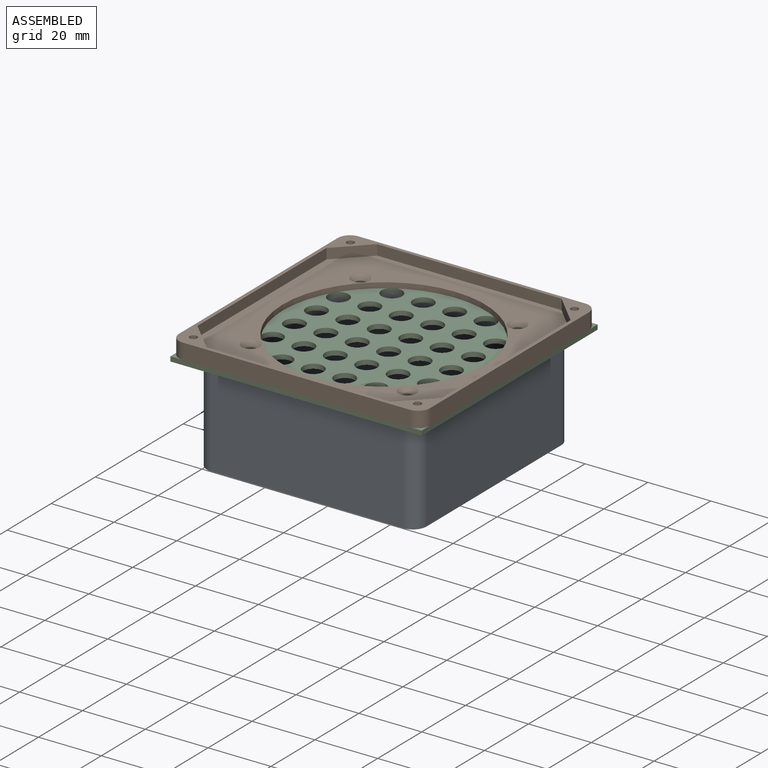
[diagram: assembled view]
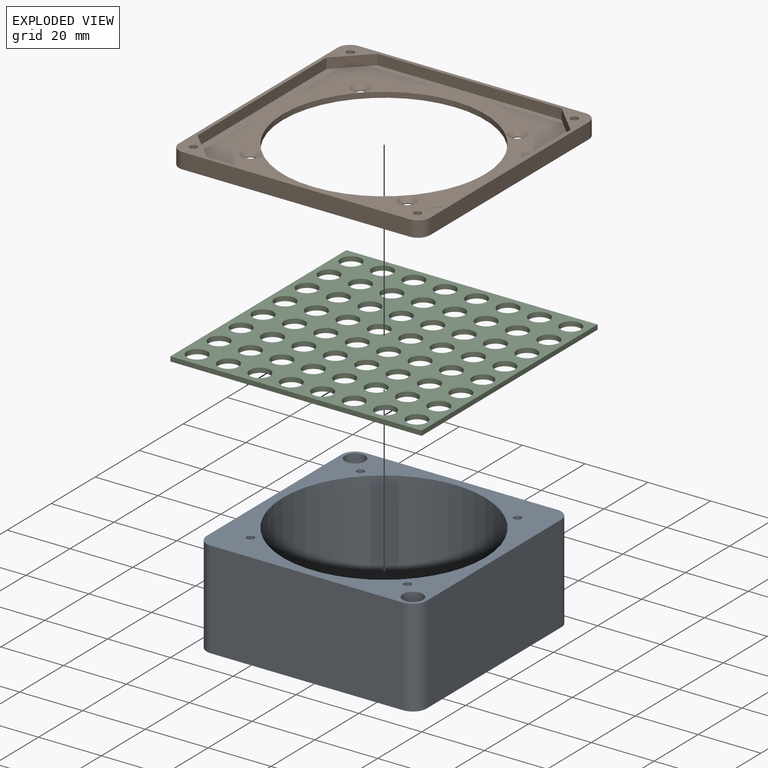
[diagram: exploded view]
GUIDED TOUR — MATED ASSEMBLY (Onshape document 4a873f5e57b5fdf1ff568552, AutoMate assembly 4a873f5e57b5fdf1ff568552_c403a5dcc06ccf6326ebb084_98eec7334da9a199d072400d_default)

This assembly has 3 components, labeled P0..P2 below (a component is one placed occurrence of a part; the same part can appear more than once), held together by 2 mates. A mate is a constraint between two components; its type names the relative motion it leaves free:
  FASTENED — locks the two components together rigidly (no relative motion).
Axis/direction vectors are unit vectors and 'through' points are millimeter coordinates, both in the assembly's world frame.

MATES
  1. FASTENED "Fastened 2": P1 <-> P2, direction (0.000, 0.000, -1.000) through (-25.00, -25.00, 32.50) mm
  2. FASTENED "Fastened 1": P2 <-> P0, direction (0.000, 0.000, -1.000) through (-25.00, -25.00, 31.00) mm

ASSEMBLY ORDER
  1. P2 — the base component [order verified]
  2. P1 [order verified]
  3. P0 [order verified]
Order-tag legend:
  [order verified] — this step's position reverses a verified removal order: the component was checked to insert without passing through the ones already placed.

Of the 3 components, 3 carry the full construction recipe — the FeatureScript program that regenerates the part's solid from scratch; the rest are supplied as boundary geometry only.
Each toured component is shown spotlighted twice — in the assembled view, then in the exploded view, where a leader line traces a displaced component back to its assembled socket (saturated green if recipe-attached, orange if geometry-only; every other component desaturated gray) — followed by its recipe or geometry summary and the mates that hold it.
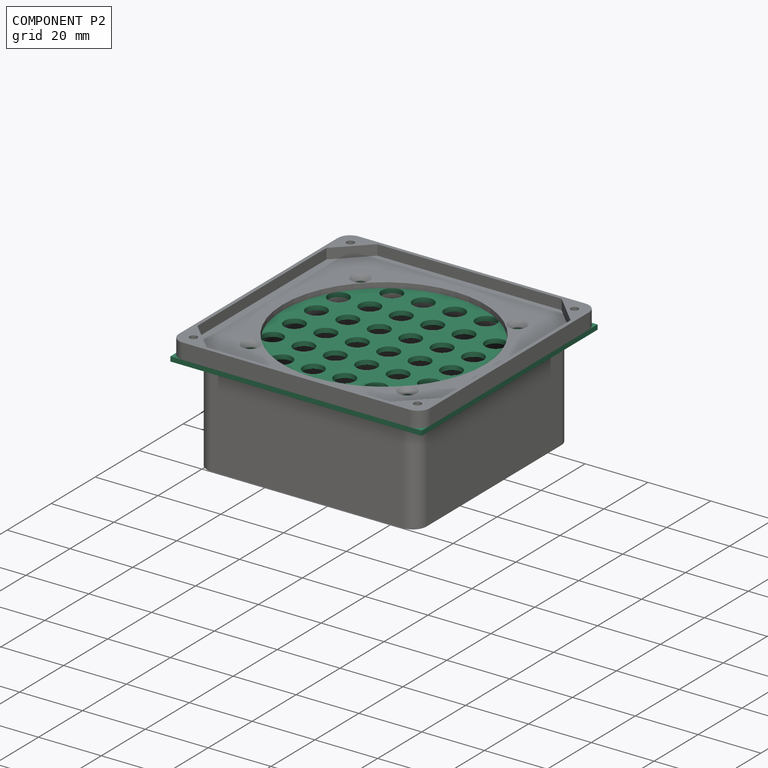
[diagram: component P2 — assembled]
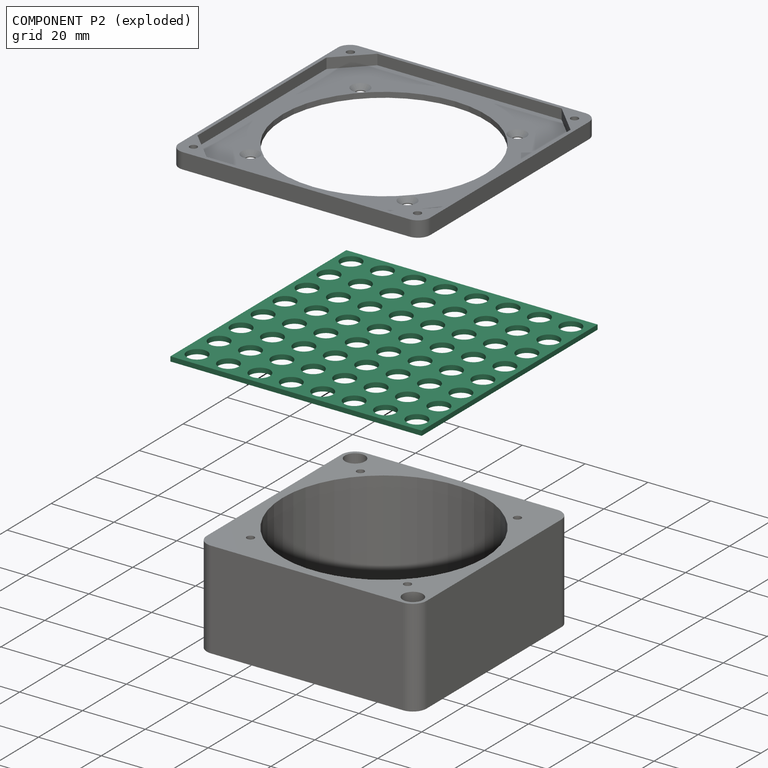
[diagram: component P2 — exploded]
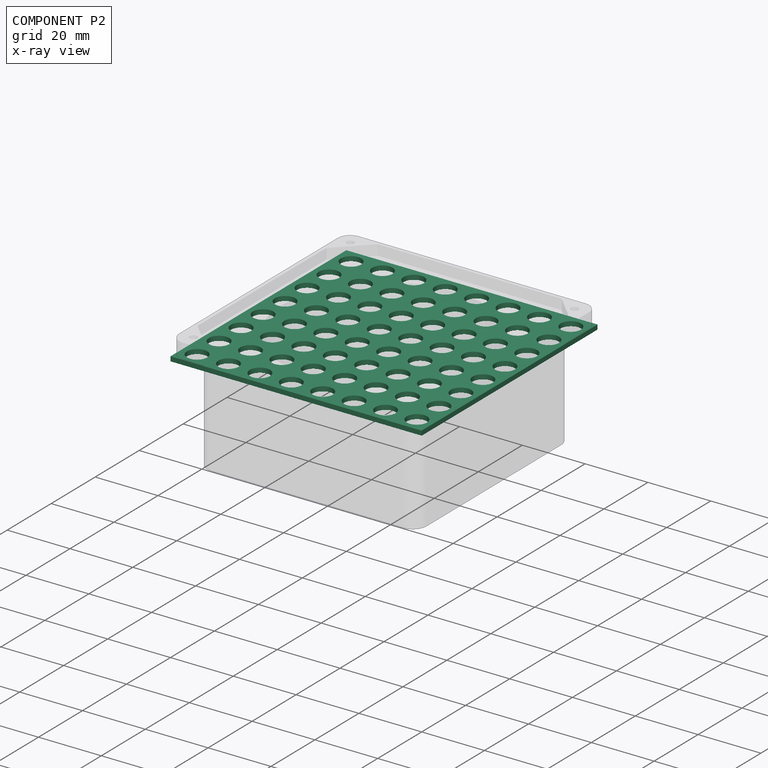
[diagram: component P2 — x-ray view]
COMPONENT P2 — recipe-attached (CADFS 00424327, mesh-verified: the recipe's output STEP matches this component's geometry to below the mesh-comparison resolution (tessellation chordal tolerance ~0.17 mm)).
Held by: FASTENED mate "Fastened 2" to P1; FASTENED mate "Fastened 1" to P0.
Construction recipe (FeatureScript — the CAD program that rebuilds this solid; sketch coordinates are in the units given by the * unit suffixes, e.g. mm):

FeatureScript 1511;
import(path : "onshape/std/geometry.fs", version : "1511.0");
import(path : "onshape/std/common.fs", version : "1511.0");
const mm = millimeter;
const VERTEX = EntityType.VERTEX;
const EDGE = EntityType.EDGE;
const FACE = EntityType.FACE;
const BODY = EntityType.BODY;
function v(x, y){return vector(x, y);}
function OD(order){return orderDisambiguation(order);}
function OSD(set){return originalSetDisambiguation(set);}
function TD(topology){return topologyDisambiguation(topology);}
function TDD(query){return trueDependencyDisambiguation(query);}
function sQuery(a, b, c) {return sketchEntityQuery(a, b, c);}

annotation { "Feature Type Name" : "Feature", "Feature Type Description" : "" }
export const myFeature = defineFeature(function(context is Context, id is Id, definition is map)
    precondition{}
    {
        {
            var Q0;
            Q0=qCreatedBy(makeId("Top.planeOp"),FACE);
            var sketch = newSketch(context, id + "F0", { "sketchPlane" : qUnion([Q0])});
            skPoint(sketch, "E0.middle", {"position": v(0, 0) * mm});
            skCircle(sketch, "E1", {"center": v(-35, 35) * mm, "radius": 3.25 * mm});
            skLineSegment(sketch, "E2.bottom", {"start": v(-40, 40) * mm, "end": v(40, 40) * mm});
            skLineSegment(sketch, "E2.top", {"start": v(-40, -40) * mm, "end": v(40, -40) * mm});
            skLineSegment(sketch, "E2.left", {"start": v(-40, 40) * mm, "end": v(-40, -40) * mm});
            skLineSegment(sketch, "E2.right", {"start": v(40, 40) * mm, "end": v(40, -40) * mm});
            skCircle(sketch, "E3.0.1.0", {"center": v(-35, 25) * mm, "radius": 3.25 * mm});
            skCircle(sketch, "E3.0.2.0", {"center": v(-35, 15) * mm, "radius": 3.25 * mm});
            skCircle(sketch, "E3.0.3.0", {"center": v(-35, 5) * mm, "radius": 3.25 * mm});
            skCircle(sketch, "E3.0.4.0", {"center": v(-35, -5) * mm, "radius": 3.25 * mm});
            skCircle(sketch, "E3.0.5.0", {"center": v(-35, -15) * mm, "radius": 3.25 * mm});
            skCircle(sketch, "E3.0.6.0", {"center": v(-35, -25) * mm, "radius": 3.25 * mm});
            skCircle(sketch, "E3.0.7.0", {"center": v(-35, -35) * mm, "radius": 3.25 * mm});
            skCircle(sketch, "E3.1.0.0", {"center": v(-25, 35) * mm, "radius": 3.25 * mm});
            skCircle(sketch, "E3.1.1.0", {"center": v(-25, 25) * mm, "radius": 3.25 * mm});
            skCircle(sketch, "E3.1.2.0", {"center": v(-25, 15) * mm, "radius": 3.25 * mm});
            skCircle(sketch, "E3.1.3.0", {"center": v(-25, 5) * mm, "radius": 3.25 * mm});
            skCircle(sketch, "E3.1.4.0", {"center": v(-25, -5) * mm, "radius": 3.25 * mm});
            skCircle(sketch, "E3.1.5.0", {"center": v(-25, -15) * mm, "radius": 3.25 * mm});
            skCircle(sketch, "E3.1.6.0", {"center": v(-25, -25) * mm, "radius": 3.25 * mm});
            skCircle(sketch, "E3.1.7.0", {"center": v(-25, -35) * mm, "radius": 3.25 * mm});
            skCircle(sketch, "E3.2.0.0", {"center": v(-15, 35) * mm, "radius": 3.25 * mm});
            skCircle(sketch, "E3.2.1.0", {"center": v(-15, 25) * mm, "radius": 3.25 * mm});
            skCircle(sketch, "E3.2.2.0", {"center": v(-15, 15) * mm, "radius": 3.25 * mm});
            skCircle(sketch, "E3.2.3.0", {"center": v(-15, 5) * mm, "radius": 3.25 * mm});
            skCircle(sketch, "E3.2.4.0", {"center": v(-15, -5) * mm, "radius": 3.25 * mm});
            skCircle(sketch, "E3.2.5.0", {"center": v(-15, -15) * mm, "radius": 3.25 * mm});
            skCircle(sketch, "E3.2.6.0", {"center": v(-15, -25) * mm, "radius": 3.25 * mm});
            skCircle(sketch, "E3.2.7.0", {"center": v(-15, -35) * mm, "radius": 3.25 * mm});
            skCircle(sketch, "E3.3.0.0", {"center": v(-5, 35) * mm, "radius": 3.25 * mm});
            skCircle(sketch, "E3.3.1.0", {"center": v(-5, 25) * mm, "radius": 3.25 * mm});
            skCircle(sketch, "E3.3.2.0", {"center": v(-5, 15) * mm, "radius": 3.25 * mm});
            skCircle(sketch, "E3.3.3.0", {"center": v(-5, 5) * mm, "radius": 3.25 * mm});
            skCircle(sketch, "E3.3.4.0", {"center": v(-5, -5) * mm, "radius": 3.25 * mm});
            skCircle(sketch, "E3.3.5.0", {"center": v(-5, -15) * mm, "radius": 3.25 * mm});
            skCircle(sketch, "E3.3.6.0", {"center": v(-5, -25) * mm, "radius": 3.25 * mm});
            skCircle(sketch, "E3.3.7.0", {"center": v(-5, -35) * mm, "radius": 3.25 * mm});
            skCircle(sketch, "E3.4.0.0", {"center": v(5, 35) * mm, "radius": 3.25 * mm});
            skCircle(sketch, "E3.4.1.0", {"center": v(5, 25) * mm, "radius": 3.25 * mm});
            skCircle(sketch, "E3.4.2.0", {"center": v(5, 15) * mm, "radius": 3.25 * mm});
            skCircle(sketch, "E3.4.3.0", {"center": v(5, 5) * mm, "radius": 3.25 * mm});
            skCircle(sketch, "E3.4.4.0", {"center": v(5, -5) * mm, "radius": 3.25 * mm});
            skCircle(sketch, "E3.4.5.0", {"center": v(5, -15) * mm, "radius": 3.25 * mm});
            skCircle(sketch, "E3.4.6.0", {"center": v(5, -25) * mm, "radius": 3.25 * mm});
            skCircle(sketch, "E3.4.7.0", {"center": v(5, -35) * mm, "radius": 3.25 * mm});
            skCircle(sketch, "E3.5.0.0", {"center": v(15, 35) * mm, "radius": 3.25 * mm});
            skCircle(sketch, "E3.5.1.0", {"center": v(15, 25) * mm, "radius": 3.25 * mm});
            skCircle(sketch, "E3.5.2.0", {"center": v(15, 15) * mm, "radius": 3.25 * mm});
            skCircle(sketch, "E3.5.3.0", {"center": v(15, 5) * mm, "radius": 3.25 * mm});
            skCircle(sketch, "E3.5.4.0", {"center": v(15, -5) * mm, "radius": 3.25 * mm});
            skCircle(sketch, "E3.5.5.0", {"center": v(15, -15) * mm, "radius": 3.25 * mm});
            skCircle(sketch, "E3.5.6.0", {"center": v(15, -25) * mm, "radius": 3.25 * mm});
            skCircle(sketch, "E3.5.7.0", {"center": v(15, -35) * mm, "radius": 3.25 * mm});
            skCircle(sketch, "E3.6.0.0", {"center": v(25, 35) * mm, "radius": 3.25 * mm});
            skCircle(sketch, "E3.6.1.0", {"center": v(25, 25) * mm, "radius": 3.25 * mm});
            skCircle(sketch, "E3.6.2.0", {"center": v(25, 15) * mm, "radius": 3.25 * mm});
            skCircle(sketch, "E3.6.3.0", {"center": v(25, 5) * mm, "radius": 3.25 * mm});
            skCircle(sketch, "E3.6.4.0", {"center": v(25, -5) * mm, "radius": 3.25 * mm});
            skCircle(sketch, "E3.6.5.0", {"center": v(25, -15) * mm, "radius": 3.25 * mm});
            skCircle(sketch, "E3.6.6.0", {"center": v(25, -25) * mm, "radius": 3.25 * mm});
            skCircle(sketch, "E3.6.7.0", {"center": v(25, -35) * mm, "radius": 3.25 * mm});
            skCircle(sketch, "E3.7.0.0", {"center": v(35, 35) * mm, "radius": 3.25 * mm});
            skCircle(sketch, "E3.7.1.0", {"center": v(35, 25) * mm, "radius": 3.25 * mm});
            skCircle(sketch, "E3.7.2.0", {"center": v(35, 15) * mm, "radius": 3.25 * mm});
            skCircle(sketch, "E3.7.3.0", {"center": v(35, 5) * mm, "radius": 3.25 * mm});
            skCircle(sketch, "E3.7.4.0", {"center": v(35, -5) * mm, "radius": 3.25 * mm});
            skCircle(sketch, "E3.7.5.0", {"center": v(35, -15) * mm, "radius": 3.25 * mm});
            skCircle(sketch, "E3.7.6.0", {"center": v(35, -25) * mm, "radius": 3.25 * mm});
            skCircle(sketch, "E3.7.7.0", {"center": v(35, -35) * mm, "radius": 3.25 * mm});
            skLineSegment(sketch, "E3.direction1", {"start": v(-35, 35) * mm, "end": v(-25, 35) * mm, "construction": true});
            skLineSegment(sketch, "E3.direction2", {"start": v(-35, 35) * mm, "end": v(-35, 25) * mm, "construction": true});
            skSolve(sketch);
        }
        {
            var Q0;
            Q0=makeQuery(id+"F0.imprint","IMPRINT",FACE,{"disambiguationData":[TD([[makeQuery(id+"F0.imprint","IMPRINT",EDGE,{"derivedFrom":sQuery(id+"F0.wireOp",EDGE,"E1")}),-1.0]])]});
            extrude(context, id + "F1", {"entities" : qUnion([Q0]), "depth" : 1.5 * mm});
        }
    });
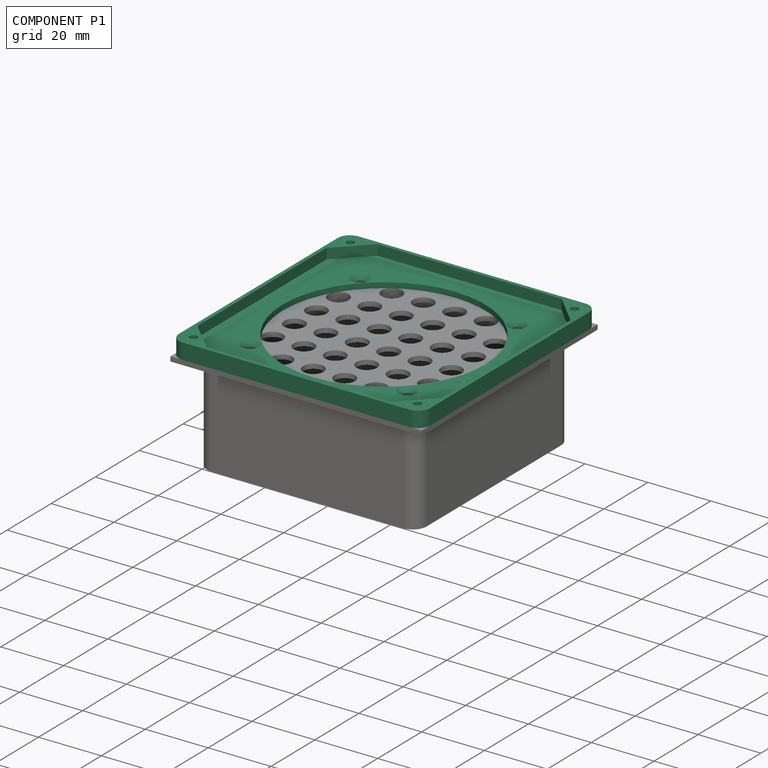
[diagram: component P1 — assembled]
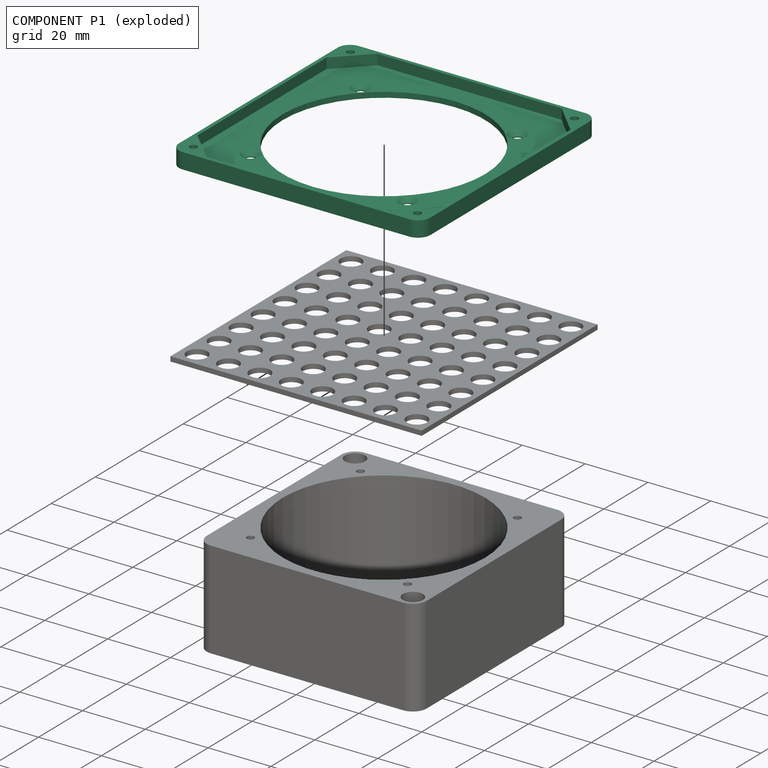
[diagram: component P1 — exploded]
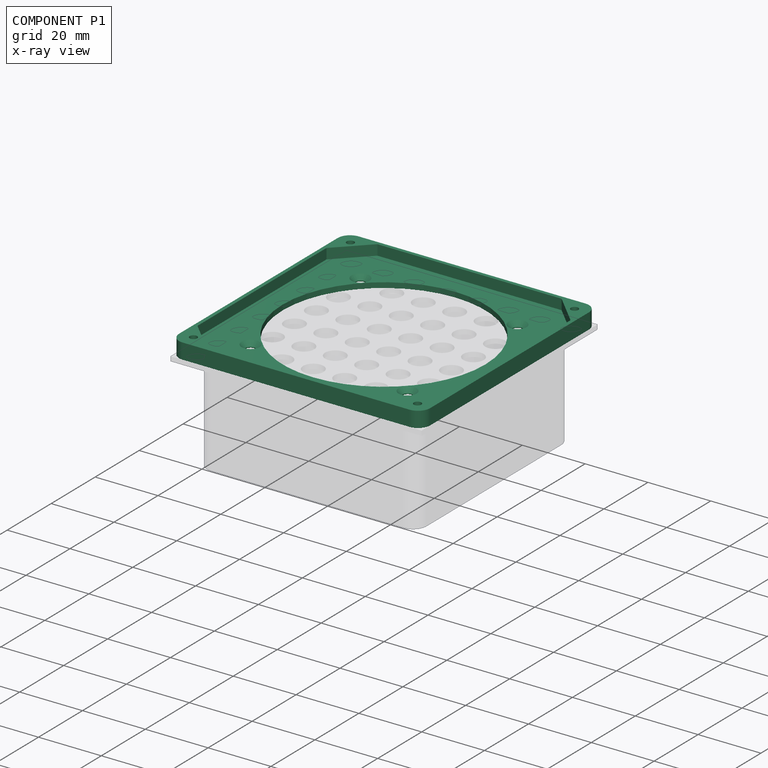
[diagram: component P1 — x-ray view]
COMPONENT P1 — recipe-attached (CADFS 00424328, mesh-verified: the recipe's output STEP matches this component's geometry to below the mesh-comparison resolution (tessellation chordal tolerance ~0.17 mm)).
Held by: FASTENED mate "Fastened 2" to P2.
Construction recipe (FeatureScript — the CAD program that rebuilds this solid; sketch coordinates are in the units given by the * unit suffixes, e.g. mm):

FeatureScript 1511;
import(path : "onshape/std/geometry.fs", version : "1511.0");
import(path : "onshape/std/common.fs", version : "1511.0");
const mm = millimeter;
const VERTEX = EntityType.VERTEX;
const EDGE = EntityType.EDGE;
const FACE = EntityType.FACE;
const BODY = EntityType.BODY;
function v(x, y){return vector(x, y);}
function OD(order){return orderDisambiguation(order);}
function OSD(set){return originalSetDisambiguation(set);}
function TD(topology){return topologyDisambiguation(topology);}
function TDD(query){return trueDependencyDisambiguation(query);}
function sQuery(a, b, c) {return sketchEntityQuery(a, b, c);}

annotation { "Feature Type Name" : "Feature", "Feature Type Description" : "" }
export const myFeature = defineFeature(function(context is Context, id is Id, definition is map)
    precondition{}
    {
        {
            var Q0;
            Q0=qCreatedBy(makeId("Top.planeOp"),FACE);
            var sketch = newSketch(context, id + "F0", { "sketchPlane" : qUnion([Q0])});
            skLineSegment(sketch, "E0.bottom", {"start": v(40, 40) * mm, "end": v(-40, 40) * mm});
            skLineSegment(sketch, "E0.top", {"start": v(40, -40) * mm, "end": v(-40, -40) * mm});
            skLineSegment(sketch, "E0.left", {"start": v(40, 40) * mm, "end": v(40, -40) * mm});
            skLineSegment(sketch, "E0.right", {"start": v(-40, 40) * mm, "end": v(-40, -40) * mm});
            skLineSegment(sketch, "E1.bottom", {"start": v(-38.86, 38.86) * mm, "end": v(38.86, 38.86) * mm});
            skLineSegment(sketch, "E1.top", {"start": v(-38.86, -38.86) * mm, "end": v(38.86, -38.86) * mm});
            skLineSegment(sketch, "E1.left", {"start": v(-38.86, 38.86) * mm, "end": v(-38.86, -38.86) * mm});
            skLineSegment(sketch, "E1.right", {"start": v(38.86, 38.86) * mm, "end": v(38.86, -38.86) * mm});
            skLineSegment(sketch, "E2", {"start": v(-38.86, 29.34) * mm, "end": v(-29.34, 38.86) * mm});
            skLineSegment(sketch, "E3", {"start": v(38.86, 29.34) * mm, "end": v(29.34, 38.86) * mm});
            skLineSegment(sketch, "E4", {"start": v(-38.86, -29.34) * mm, "end": v(-29.34, -38.86) * mm});
            skLineSegment(sketch, "E5", {"start": v(29.33, -38.86) * mm, "end": v(38.86, -29.34) * mm});
            skCircle(sketch, "E6", {"center": v(0, 0) * mm, "radius": 32.25 * mm});
            skSolve(sketch);
        }
        {
            var Q0;
            Q0=makeQuery(id+"F0.imprint","IMPRINT",FACE,{"disambiguationData":[TD([[makeQuery(id+"F0.imprint","IMPRINT",EDGE,{"derivedFrom":sQuery(id+"F0.wireOp",EDGE,"E0.bottom")}),1.0]])]});
            var Q1;
            {var subQ3=sQuery(id+"F0.wireOp",EDGE,"E2");Q1=makeQuery(id+"F0.imprint","IMPRINT",FACE,{"disambiguationData":[TD([[makeQuery(id+"F0.imprint","IMPRINT",EDGE,{"derivedFrom":subQ3}),1.0]])]});}
            var Q2;
            {var subQ3=sQuery(id+"F0.wireOp",EDGE,"E3");Q2=makeQuery(id+"F0.imprint","IMPRINT",FACE,{"disambiguationData":[TD([[makeQuery(id+"F0.imprint","IMPRINT",EDGE,{"derivedFrom":subQ3}),-1.0]])]});}
            var Q3;
            {var subQ3=sQuery(id+"F0.wireOp",EDGE,"E5");Q3=makeQuery(id+"F0.imprint","IMPRINT",FACE,{"disambiguationData":[TD([[makeQuery(id+"F0.imprint","IMPRINT",EDGE,{"derivedFrom":subQ3}),-1.0]])]});}
            var Q4;
            {var subQ3=sQuery(id+"F0.wireOp",EDGE,"E4");Q4=makeQuery(id+"F0.imprint","IMPRINT",FACE,{"disambiguationData":[TD([[makeQuery(id+"F0.imprint","IMPRINT",EDGE,{"derivedFrom":subQ3}),-1.0]])]});}
            extrude(context, id + "F1", {"entities" : qUnion([Q0, Q1, Q2, Q3, Q4]), "depth" : 5 * mm});
        }
        {
            var Q0;
            {var subQ3=sQuery(id+"F0.wireOp",EDGE,"E2");Q0=makeQuery(id+"F0.imprint","IMPRINT",FACE,{"disambiguationData":[TD([[makeQuery(id+"F0.imprint","IMPRINT",EDGE,{"derivedFrom":subQ3}),-1.0]])]});}
            extrude(context, id + "F2", {"entities" : qUnion([Q0]), "operationType" : NewBodyOperationType.ADD, "depth" : 1.7 * mm});
        }
        {
            var Q0;
            Q0=makeQuery(id+"F2.opExtrude","CAP_FACE",FACE,{"disambiguationData":[OSD([sQuery(id+"F0.wireOp",EDGE,"E1.bottom"),sQuery(id+"F0.wireOp",EDGE,"E1.left"),sQuery(id+"F0.wireOp",EDGE,"XLrHhnJ7-dGzd-Xrbb-NlTP-VvqNMSYbdhlf"),sQuery(id+"F0.wireOp",EDGE,"qSElXV0h-k4yD-cxAT-piWP-e7Eb2hw5FfI5")])],"isStart":false});
            var sketch = newSketch(context, id + "F3", { "sketchPlane" : qUnion([Q0])});
            skPoint(sketch, "E7", {"position": v(-25, 25) * mm});
            skPoint(sketch, "E8.0.1.0", {"position": v(-25, -25) * mm});
            skPoint(sketch, "E8.1.0.0", {"position": v(25, 25) * mm});
            skPoint(sketch, "E8.1.1.0", {"position": v(25, -25) * mm});
            skLineSegment(sketch, "E8.direction1", {"start": v(-25, 25) * mm, "end": v(25, 25) * mm, "construction": true});
            skLineSegment(sketch, "E8.direction2", {"start": v(-25, 25) * mm, "end": v(-25, -25) * mm, "construction": true});
            skSolve(sketch);
        }
        {
            var Q0;
            Q0=sQuery(id+"F3.wireOp",VERTEX,"E7");
            var Q1;
            Q1=sQuery(id+"F3.wireOp",VERTEX,"E8.1.0.0");
            var Q2;
            Q2=sQuery(id+"F3.wireOp",VERTEX,"E8.1.1.0");
            var Q3;
            Q3=sQuery(id+"F3.wireOp",VERTEX,"E8.0.1.0");
            var Q4;
            Q4=makeQuery(id+"F1.opExtrude","SWEPT_BODY",BODY,{"disambiguationData":[OSD([sQuery(id+"F0.wireOp",EDGE,"E0.bottom"),sQuery(id+"F0.wireOp",EDGE,"E0.top"),sQuery(id+"F0.wireOp",EDGE,"E0.left"),sQuery(id+"F0.wireOp",EDGE,"E0.right"),sQuery(id+"F0.wireOp",EDGE,"E1.bottom"),sQuery(id+"F0.wireOp",EDGE,"E1.top"),sQuery(id+"F0.wireOp",EDGE,"E1.left"),sQuery(id+"F0.wireOp",EDGE,"E1.right"),sQuery(id+"F0.wireOp",EDGE,"E2"),sQuery(id+"F0.wireOp",EDGE,"E3"),sQuery(id+"F0.wireOp",EDGE,"E4"),sQuery(id+"F0.wireOp",EDGE,"E5")])]});
            hole(context, id + "F4", {"style" : HoleStyle.C_SINK, "endStyle" : HoleEndStyle.THROUGH, "holeDiameter" : 3 * mm, "cSinkDiameter" : 5.75 * mm, "cSinkAngle" : 90 * degree, "isTappedThrough" : true, "tappedDepth" : 12 * mm, "tapClearance" : 3, "locations" : qUnion([Q0, Q1, Q2, Q3]), "scope" : qUnion([Q4])});
        }
        {
            var Q0;
            Q0=makeQuery(id+"F1.opExtrude","CAP_FACE",FACE,{"disambiguationData":[OSD([sQuery(id+"F0.wireOp",EDGE,"E0.bottom"),sQuery(id+"F0.wireOp",EDGE,"E0.top"),sQuery(id+"F0.wireOp",EDGE,"E0.left"),sQuery(id+"F0.wireOp",EDGE,"E0.right"),sQuery(id+"F0.wireOp",EDGE,"E1.bottom"),sQuery(id+"F0.wireOp",EDGE,"E1.top"),sQuery(id+"F0.wireOp",EDGE,"E1.left"),sQuery(id+"F0.wireOp",EDGE,"E1.right"),sQuery(id+"F0.wireOp",EDGE,"E2"),sQuery(id+"F0.wireOp",EDGE,"E3"),sQuery(id+"F0.wireOp",EDGE,"E4"),sQuery(id+"F0.wireOp",EDGE,"E5")])],"isStart":false});
            var sketch = newSketch(context, id + "F5", { "sketchPlane" : qUnion([Q0])});
            skPoint(sketch, "E9", {"position": v(-35.69, 35.69) * mm});
            skPoint(sketch, "E10.0.1.0", {"position": v(-35.69, -35.69) * mm});
            skPoint(sketch, "E10.1.0.0", {"position": v(35.68, 35.69) * mm});
            skPoint(sketch, "E10.1.1.0", {"position": v(35.68, -35.69) * mm});
            skLineSegment(sketch, "E10.direction1", {"start": v(-35.69, 35.69) * mm, "end": v(35.68, 35.69) * mm, "construction": true});
            skLineSegment(sketch, "E10.direction2", {"start": v(-35.69, 35.69) * mm, "end": v(-35.69, -35.69) * mm, "construction": true});
            skSolve(sketch);
        }
        {
            var Q0;
            Q0=sQuery(id+"F5.wireOp",VERTEX,"E9");
            var Q1;
            Q1=sQuery(id+"F5.wireOp",VERTEX,"E10.1.0.0");
            var Q2;
            Q2=sQuery(id+"F5.wireOp",VERTEX,"E10.1.1.0");
            var Q3;
            Q3=sQuery(id+"F5.wireOp",VERTEX,"E10.0.1.0");
            var Q4;
            Q4=makeQuery(id+"F1.opExtrude","SWEPT_BODY",BODY,{"disambiguationData":[OSD([sQuery(id+"F0.wireOp",EDGE,"E0.bottom"),sQuery(id+"F0.wireOp",EDGE,"E0.top"),sQuery(id+"F0.wireOp",EDGE,"E0.left"),sQuery(id+"F0.wireOp",EDGE,"E0.right"),sQuery(id+"F0.wireOp",EDGE,"E1.bottom"),sQuery(id+"F0.wireOp",EDGE,"E1.top"),sQuery(id+"F0.wireOp",EDGE,"E1.left"),sQuery(id+"F0.wireOp",EDGE,"E1.right"),sQuery(id+"F0.wireOp",EDGE,"E2"),sQuery(id+"F0.wireOp",EDGE,"E3"),sQuery(id+"F0.wireOp",EDGE,"E4"),sQuery(id+"F0.wireOp",EDGE,"E5")])]});
            hole(context, id + "F6", {"style" : HoleStyle.SIMPLE, "endStyle" : HoleEndStyle.THROUGH, "holeDiameter" : 2.4 * mm, "isTappedThrough" : true, "tappedDepth" : 12 * mm, "tapClearance" : 3, "locations" : qUnion([Q0, Q1, Q2, Q3]), "scope" : qUnion([Q4])});
        }
        {
            var Q0;
            Q0=makeQuery(id+"F1.opExtrude","SWEPT_EDGE",EDGE,{"disambiguationData":[OSD([sQuery(id+"F0.wireOp",EDGE,"E0.top"),sQuery(id+"F0.wireOp",EDGE,"E0.right")])]});
            var Q1;
            Q1=makeQuery(id+"F1.opExtrude","SWEPT_EDGE",EDGE,{"disambiguationData":[OSD([sQuery(id+"F0.wireOp",EDGE,"E0.top"),sQuery(id+"F0.wireOp",EDGE,"E0.left")])]});
            var Q2;
            Q2=makeQuery(id+"F1.opExtrude","SWEPT_EDGE",EDGE,{"disambiguationData":[OSD([sQuery(id+"F0.wireOp",EDGE,"E0.bottom"),sQuery(id+"F0.wireOp",EDGE,"E0.left")])]});
            var Q3;
            Q3=makeQuery(id+"F1.opExtrude","SWEPT_EDGE",EDGE,{"disambiguationData":[OSD([sQuery(id+"F0.wireOp",EDGE,"E0.bottom"),sQuery(id+"F0.wireOp",EDGE,"E0.right")])]});
            fillet(context, id + "F7", {"entities" : qUnion([Q0, Q1, Q2, Q3]), "radius" : 3.9 * mm, "tangentPropagation" : true, "allowEdgeOverflow" : false});
        }
    });
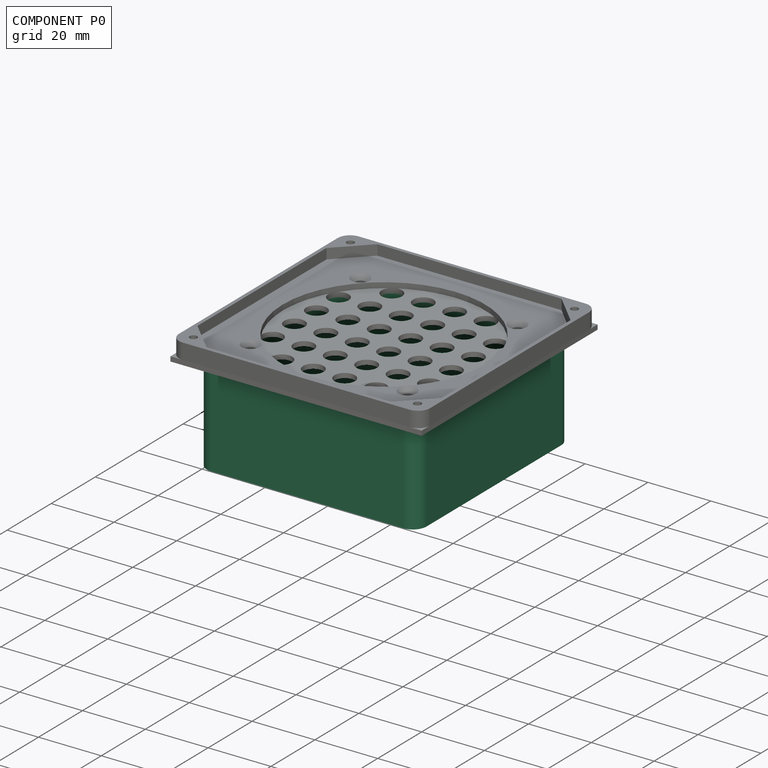
[diagram: component P0 — assembled]
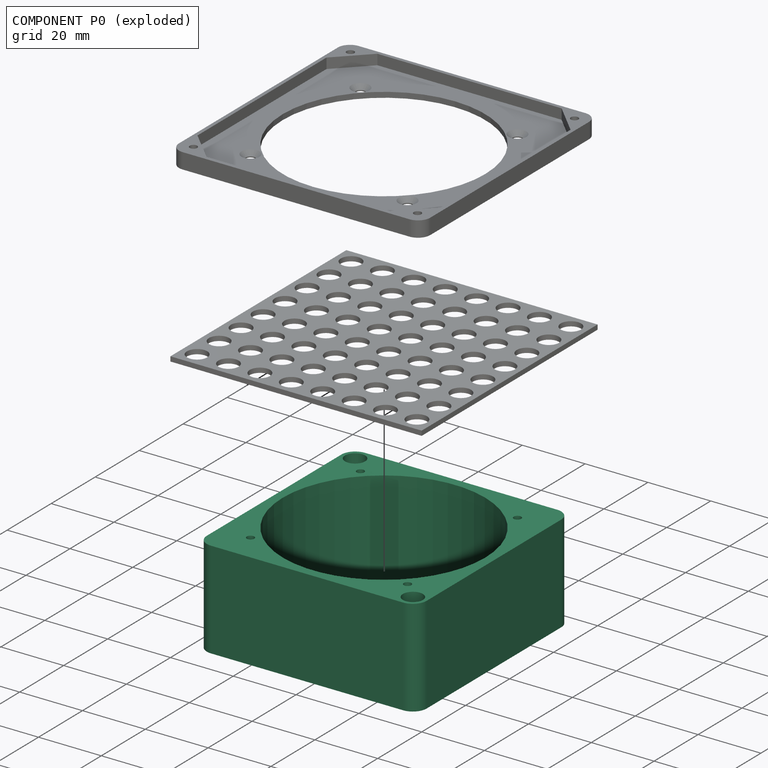
[diagram: component P0 — exploded]
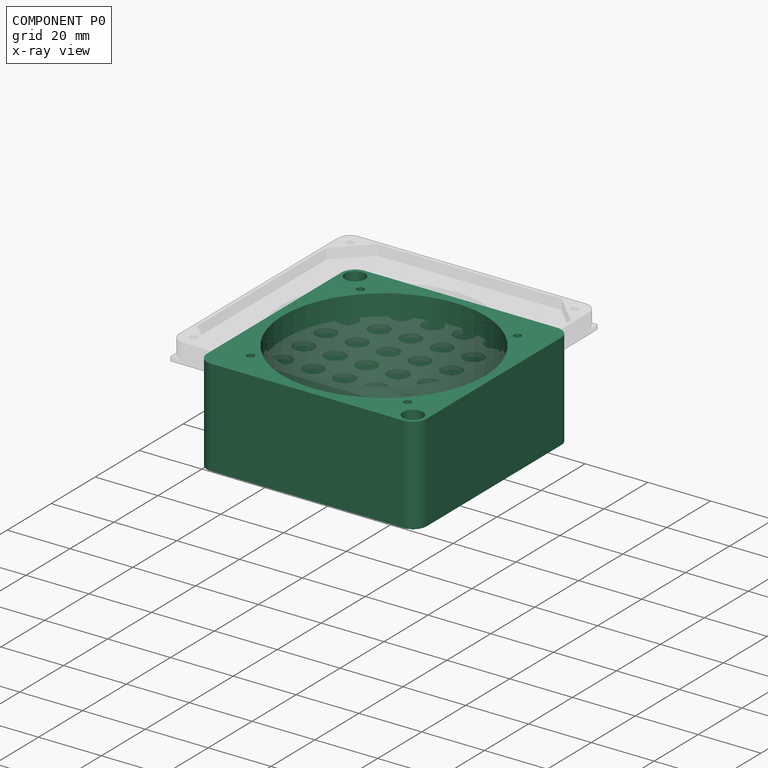
[diagram: component P0 — x-ray view]
COMPONENT P0 — recipe-attached (CADFS 00424325, mesh-verified: the recipe's output STEP matches this component's geometry to below the mesh-comparison resolution (tessellation chordal tolerance ~0.156 mm)).
Held by: FASTENED mate "Fastened 1" to P2.
Construction recipe (FeatureScript — the CAD program that rebuilds this solid; sketch coordinates are in the units given by the * unit suffixes, e.g. mm):

FeatureScript 1511;
import(path : "onshape/std/geometry.fs", version : "1511.0");
import(path : "onshape/std/common.fs", version : "1511.0");
const mm = millimeter;
const VERTEX = EntityType.VERTEX;
const EDGE = EntityType.EDGE;
const FACE = EntityType.FACE;
const BODY = EntityType.BODY;
function v(x, y){return vector(x, y);}
function OD(order){return orderDisambiguation(order);}
function OSD(set){return originalSetDisambiguation(set);}
function TD(topology){return topologyDisambiguation(topology);}
function TDD(query){return trueDependencyDisambiguation(query);}
function sQuery(a, b, c) {return sketchEntityQuery(a, b, c);}

annotation { "Feature Type Name" : "Feature", "Feature Type Description" : "" }
export const myFeature = defineFeature(function(context is Context, id is Id, definition is map)
    precondition{}
    {
        {
            var Q0;
            Q0=qCreatedBy(makeId("Top.planeOp"),FACE);
            var sketch = newSketch(context, id + "F0", { "sketchPlane" : qUnion([Q0])});
            skLineSegment(sketch, "E0.bottom", {"start": v(35, 35) * mm, "end": v(-35, 35) * mm});
            skLineSegment(sketch, "E0.top", {"start": v(35, -35) * mm, "end": v(-35, -35) * mm});
            skLineSegment(sketch, "E0.left", {"start": v(35, 35) * mm, "end": v(35, -35) * mm});
            skLineSegment(sketch, "E0.right", {"start": v(-35, 35) * mm, "end": v(-35, -35) * mm});
            skPoint(sketch, "E0.middle", {"position": v(0, 0) * mm});
            skCircle(sketch, "E1", {"center": v(0, 0) * mm, "radius": 32.25 * mm});
            skCircle(sketch, "E2", {"center": v(-30.7, 30.7) * mm, "radius": 3.2 * mm});
            skCircle(sketch, "E3", {"center": v(30.7, -30.7) * mm, "radius": 3.2 * mm});
            skCircle(sketch, "E4", {"center": v(-30.7, 30.7) * mm, "radius": 1.5 * mm});
            skCircle(sketch, "E5", {"center": v(30.7, -30.7) * mm, "radius": 1.5 * mm});
            skSolve(sketch);
        }
        {
            var Q0;
            {var subQ1=sQuery(id+"F0.wireOp",EDGE,"E0.top");Q0=makeQuery(id+"F0.imprint","IMPRINT",FACE,{"disambiguationData":[TD([[makeQuery(id+"F0.imprint","IMPRINT",EDGE,{"derivedFrom":subQ1}),-1.0]])]});}
            extrude(context, id + "F1", {"entities" : qUnion([Q0]), "depth" : 31 * mm});
        }
        {
            var Q0;
            Q0=makeQuery(id+"F0.imprint","IMPRINT",FACE,{"disambiguationData":[TD([[makeQuery(id+"F0.imprint","IMPRINT",EDGE,{"derivedFrom":sQuery(id+"F0.wireOp",EDGE,"E4")}),-1.0]])]});
            extrude(context, id + "F2", {"entities" : qUnion([Q0]), "operationType" : NewBodyOperationType.ADD, "depth" : 5 * mm});
        }
        {
            var Q0;
            Q0=makeQuery(id+"F0.imprint","IMPRINT",FACE,{"disambiguationData":[TD([[makeQuery(id+"F0.imprint","IMPRINT",EDGE,{"derivedFrom":sQuery(id+"F0.wireOp",EDGE,"E3")}),1.0]])]});
            extrude(context, id + "F3", {"entities" : qUnion([Q0]), "operationType" : NewBodyOperationType.ADD, "depth" : 5 * mm});
        }
        {
            var Q0;
            Q0=makeQuery(id+"F1.opExtrude","CAP_FACE",FACE,{"disambiguationData":[OSD([sQuery(id+"F0.wireOp",EDGE,"E0.bottom"),sQuery(id+"F0.wireOp",EDGE,"E0.top"),sQuery(id+"F0.wireOp",EDGE,"E0.left"),sQuery(id+"F0.wireOp",EDGE,"E0.right"),sQuery(id+"F0.wireOp",EDGE,"E1"),sQuery(id+"F0.wireOp",EDGE,"E2"),sQuery(id+"F0.wireOp",EDGE,"E3")])],"isStart":false});
            var sketch = newSketch(context, id + "F4", { "sketchPlane" : qUnion([Q0])});
            skPoint(sketch, "E6", {"position": v(-25, -25) * mm});
            skPoint(sketch, "E7", {"position": v(25, 25) * mm});
            skPoint(sketch, "E8", {"position": v(-25, 25) * mm});
            skPoint(sketch, "E9", {"position": v(25, -25) * mm});
            skSolve(sketch);
        }
        {
            var Q0;
            Q0=sQuery(id+"F4.wireOp",VERTEX,"E6");
            var Q1;
            Q1=sQuery(id+"F4.wireOp",VERTEX,"E7");
            var Q2;
            Q2=sQuery(id+"F4.wireOp",VERTEX,"E8");
            var Q3;
            Q3=sQuery(id+"F4.wireOp",VERTEX,"E9");
            var Q4;
            Q4=makeQuery(id+"F1.opExtrude","SWEPT_BODY",BODY,{"disambiguationData":[OSD([sQuery(id+"F0.wireOp",EDGE,"E0.bottom"),sQuery(id+"F0.wireOp",EDGE,"E0.top"),sQuery(id+"F0.wireOp",EDGE,"E0.left"),sQuery(id+"F0.wireOp",EDGE,"E0.right"),sQuery(id+"F0.wireOp",EDGE,"E1"),sQuery(id+"F0.wireOp",EDGE,"E2"),sQuery(id+"F0.wireOp",EDGE,"E3")])]});
            hole(context, id + "F5", {"style" : HoleStyle.SIMPLE, "endStyle" : HoleEndStyle.BLIND, "holeDiameter" : 2.4 * mm, "holeDepth" : 8 * mm, "isTappedThrough" : true, "tappedDepth" : 12 * mm, "tapClearance" : 3, "locations" : qUnion([Q0, Q1, Q2, Q3]), "scope" : qUnion([Q4])});
        }
        {
            var Q0;
            Q0=makeQuery(id+"F1.opExtrude","SWEPT_EDGE",EDGE,{"disambiguationData":[OSD([sQuery(id+"F0.wireOp",EDGE,"E0.top"),sQuery(id+"F0.wireOp",EDGE,"E0.right")])]});
            var Q1;
            Q1=makeQuery(id+"F1.opExtrude","SWEPT_EDGE",EDGE,{"disambiguationData":[OSD([sQuery(id+"F0.wireOp",EDGE,"E0.top"),sQuery(id+"F0.wireOp",EDGE,"E0.left")])]});
            var Q2;
            Q2=makeQuery(id+"F1.opExtrude","SWEPT_EDGE",EDGE,{"disambiguationData":[OSD([sQuery(id+"F0.wireOp",EDGE,"E0.bottom"),sQuery(id+"F0.wireOp",EDGE,"E0.left")])]});
            var Q3;
            Q3=makeQuery(id+"F1.opExtrude","SWEPT_EDGE",EDGE,{"disambiguationData":[OSD([sQuery(id+"F0.wireOp",EDGE,"E0.bottom"),sQuery(id+"F0.wireOp",EDGE,"E0.right")])]});
            fillet(context, id + "F6", {"entities" : qUnion([Q0, Q1, Q2, Q3]), "radius" : 4.4 * mm, "tangentPropagation" : true, "allowEdgeOverflow" : false});
        }
    });
PROVENANCE & LICENSES
Assembly (occurrences, transforms, mates, per-part STEP geometry): AutoMate dataset, Zenodo record 7776208, CC0.
Construction recipes: CADFS (HuggingFace VladPyatov/CADFS, CC-BY-4.0, layered over the ABC dataset), FeatureScript reconstruction programs keyed by ABC model id.
Join: ABC meta listings map ABC model id -> Onshape documentId; within a shared document, parts are matched by geometric signature (bounding-box dims + volume at 0.1% relative tolerance, exact B-rep face/solid counts).
Verification: 3 of this assembly's 3 components carry a recipe attachment, and every attachment is mesh-verified: the CADFS STEP and the AutoMate member STEP were compared as meshes in their shared local frame (symmetric sampled-point-to-mesh distance); worst across the 3 attachments: below the mesh-comparison resolution (tessellation chordal tolerance ~0.17 mm) on a 113 mm part.
Renders: orthographic iso camera (az 35 / el 25); the floor grid conveys scale (grid pitch printed in each image; no ruler). In the exploded view each component is displaced by its stored offset vector: the offsets alone carry the explosion direction (mate normal/axis signs are not orientation cues and do not encode it), and separation distances are assigned per mate-chain, not proportionally to assembly-order depth.
